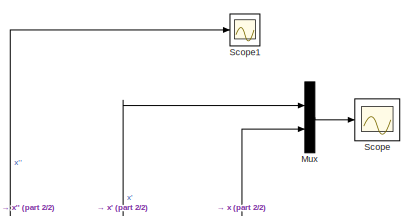
[diagram: root canvas - part 1/2, top right region]
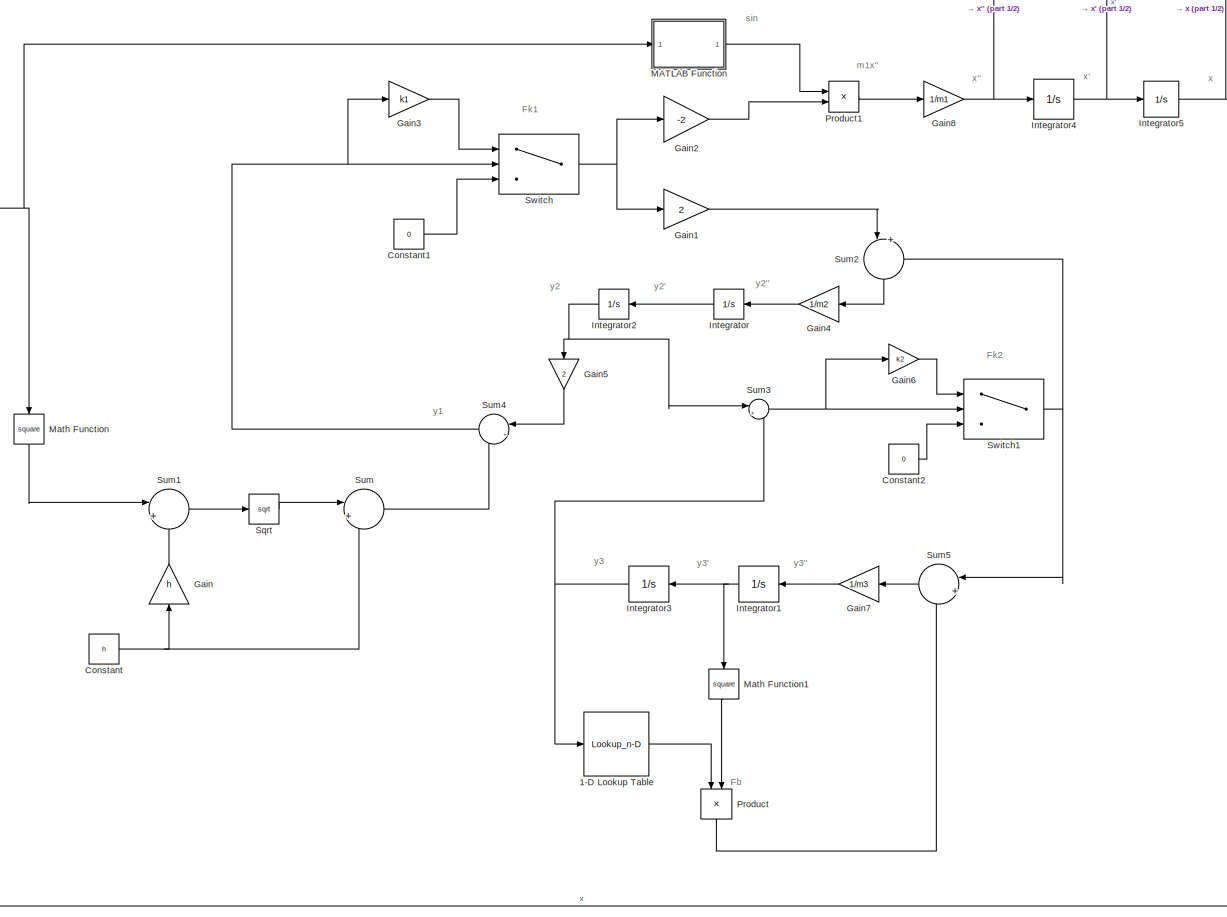
[diagram: root canvas - part 2/2, most of the canvas]
MODEL slx_0ece30acfbcc
KIND model
CONFIG AbsTol = auto
CONFIG EnableMultiTasking = off
CONFIG FixedStep = auto
CONFIG MaxStep = auto
CONFIG MinStep = auto
CONFIG RelTol = 1e-3
CONFIG SampleTimeConstraint = Unconstrained
CONFIG SolverName = VariableStepAuto
CONFIG StartTime = 0.0
CONFIG StopTime = 10.0
BLOCK [Lookup_n-D] 1-D Lookup Table
  BreakpointsForDimension1 = [0, 10, 20, 30, 40, 50, 60, 70, 80, 90, 94, 98, 102, 104, 107, 120]
  InputPortMap = u0
  InternalRulePriority = Speed
  NumberOfTableDimensions = 1
  Ports = [1, 1]
  RndMeth = Simplest
  Table = [833, 400, 160, 320, 520, 520, 660, 830, 1070, 1600, 2100, 2800, 4100, 5000, 9000, 9000]
BLOCK [Constant] Constant
  Value = h
BLOCK [Constant] Constant1
  Value = 0
BLOCK [Constant] Constant2
  Value = 0
BLOCK [Gain] Gain
  Gain = h
  NameLocation = right
BLOCK [Gain] Gain1
  Gain = 2
BLOCK [Gain] Gain2
  Gain = -2
BLOCK [Gain] Gain3
  Gain = k1
BLOCK [Gain] Gain4
  Gain = 1/m2
  NameLocation = top
BLOCK [Gain] Gain5
  Gain = 2
  NameLocation = left
BLOCK [Gain] Gain6
  Gain = k2
BLOCK [Gain] Gain7
  Gain = 1/m3
  NameLocation = top
BLOCK [Gain] Gain8
  Gain = 1/m1
BLOCK [Integrator] Integrator
  NameLocation = top
  Ports = [1, 1]
BLOCK [Integrator] Integrator1
  NameLocation = top
  Ports = [1, 1]
BLOCK [Integrator] Integrator2
  NameLocation = top
  Ports = [1, 1]
BLOCK [Integrator] Integrator3
  NameLocation = top
  Ports = [1, 1]
BLOCK [Integrator] Integrator4
  InitialCondition = 67
  Ports = [1, 1]
BLOCK [Integrator] Integrator5
  Ports = [1, 1]
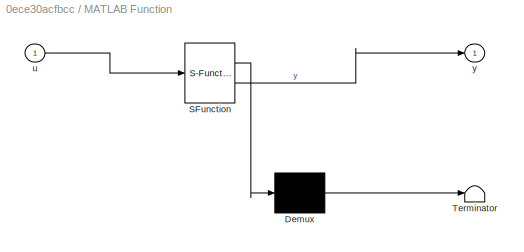
BLOCK [SubSystem] MATLAB Function
  ErrorFcn = Stateflow.Translate.translate
  PermitHierarchicalResolution = ExplicitOnly
  Ports = [1, 1]
  RequestExecContextInheritance = off
  SFBlockType = MATLAB Function
  TreatAsAtomicUnit = on
BLOCK [Demux] MATLAB Function/ Demux 
  Outputs = 1
  Ports = [1, 1]
BLOCK [S-Function] MATLAB Function/ SFunction 
  EnableBusSupport = on
  FunctionName = sf_sfun
  PortCounts = [1 2]
  Ports = [1, 2]
  SFcnIsStateOwnerBlock = off
  SFunctionDeploymentMode = off
  Tag = Stateflow S-Function 2
BLOCK [Terminator] MATLAB Function/ Terminator 
BLOCK [Inport] MATLAB Function/u
BLOCK [Outport] MATLAB Function/y
BLOCK [Math] Math Function
  NameLocation = left
  Operator = square
  Ports = [1, 1]
BLOCK [Math] Math Function1
  NameLocation = left
  Operator = square
  Ports = [1, 1]
BLOCK [Mux] Mux
  DisplayOption = bar
  Inputs = 2
  Ports = [2, 1]
BLOCK [Product] Product
  NameLocation = left
  Ports = [2, 1]
BLOCK [Product] Product1
  Ports = [2, 1]
BLOCK [Scope] Scope
  Floating = off
  NumInputPorts = 1
  Ports = [1]
  ScopeSpecificationString = Simulink.scopes.TimeScopeBlockCfg('CurrentConfiguration', extmgr.ConfigurationSet(extmgr.Configuration('Core','General UI',true),extmgr.Configuration('Core','Source UI',true),extmgr.Configuration('Sources','WiredSimulink',true),extmgr.Configuration('Visuals','Time Domain',true,'SerializedDisplays',{struct('MinYLimReal','-49.47475','MaxYLimReal','277.87947','YLabelReal','','MinYLimMag','0.00000','M...<+1434ch>
BLOCK [Scope] Scope1
  Floating = off
  NumInputPorts = 1
  Ports = [1]
  ScopeSpecificationString = Simulink.scopes.TimeScopeBlockCfg('CurrentConfiguration', extmgr.ConfigurationSet(extmgr.Configuration('Core','General UI',true),extmgr.Configuration('Core','Source UI',true),extmgr.Configuration('Sources','WiredSimulink',true,'DataLoggingVariableName','ScopeData1'),extmgr.Configuration('Visuals','Time Domain',true,'SerializedDisplays',{struct('MinYLimReal','-18.83175','MaxYLimReal','2.09242','YLa...<+1395ch>
BLOCK [Sqrt] Sqrt
BLOCK [Sum] Sum
  Inputs = |+-
  Ports = [2, 1]
BLOCK [Sum] Sum1
  Inputs = |++
  Ports = [2, 1]
BLOCK [Sum] Sum2
  Inputs = |+-
  NameLocation = left
  Ports = [2, 1]
BLOCK [Sum] Sum3
  Inputs = |+-
  Ports = [2, 1]
BLOCK [Sum] Sum4
  Inputs = |-+
  NameLocation = top
  Ports = [2, 1]
BLOCK [Sum] Sum5
  Inputs = |+-
  NameLocation = top
  Ports = [2, 1]
BLOCK [Switch] Switch
  InputSameDT = off
  SaturateOnIntegerOverflow = off
BLOCK [Switch] Switch1
  InputSameDT = off
  SaturateOnIntegerOverflow = off
ANNOTATION (root): Fb
ANNOTATION (root): Fk1
ANNOTATION (root): Fk2
ANNOTATION (root): m1x''
ANNOTATION (root): sin
ANNOTATION (root): x
ANNOTATION (root): x'
ANNOTATION (root): x''
ANNOTATION (root): y1
ANNOTATION (root): y2
ANNOTATION (root): y2'
ANNOTATION (root): y2''
ANNOTATION (root): y3
ANNOTATION (root): y3'
ANNOTATION (root): y3''
LINE 1-D Lookup Table:1 -> Product:1
LINE Constant1:1 -> Switch:3
LINE Constant2:1 -> Switch1:3
NET Constant:1 -> Gain:1, Sum:2
LINE Gain1:1 -> Sum2:1
LINE Gain2:1 -> Product1:2
LINE Gain3:1 -> Switch:1
LINE Gain4:1 -> Integrator:1
LINE Gain5:1 -> Sum4:1
LINE Gain6:1 -> Switch1:1
LINE Gain7:1 -> Integrator1:1
NET Gain8:1 -> Integrator4:1, Scope1:1
LINE Gain:1 -> Sum1:2
NET Integrator1:1 -> Integrator3:1, Math Function1:1
NET Integrator2:1 -> Gain5:1, Sum3:1
NET Integrator3:1 -> 1-D Lookup Table:1, Sum3:2
NET Integrator4:1 -> Integrator5:1, Mux:1
NET Integrator5:1 -> MATLAB Function:1, Math Function:1, Mux:2
LINE Integrator:1 -> Integrator2:1
LINE MATLAB Function:1 -> Product1:1
LINE Math Function1:1 -> Product:2
LINE Math Function:1 -> Sum1:1
LINE Mux:1 -> Scope:1
LINE Product1:1 -> Gain8:1
LINE Product:1 -> Sum5:2
LINE Sqrt:1 -> Sum:1
LINE Sum1:1 -> Sqrt:1
LINE Sum2:1 -> Gain4:1
NET Sum3:1 -> Gain6:1, Switch1:2
NET Sum4:1 -> Gain3:1, Switch:2
LINE Sum5:1 -> Gain7:1
LINE Sum:1 -> Sum4:2
NET Switch1:1 -> Sum2:2, Sum5:1
NET Switch:1 -> Gain1:1, Gain2:1
note: NET lines group one-source signal fan-out (src -> all destinations, sorted); 1:1 wires keep LINE
CHART MATLAB Function states=1 transitions=1
  STATE_LABEL 'eML_blk_kernel()'
  STATE_LABEL 'SCRIPT:\nfunction y = fcn(u)\nh = 42;\ny = u/(sqrt(u^2 + h^2));\n'
CHART  states=0 transitions=0
